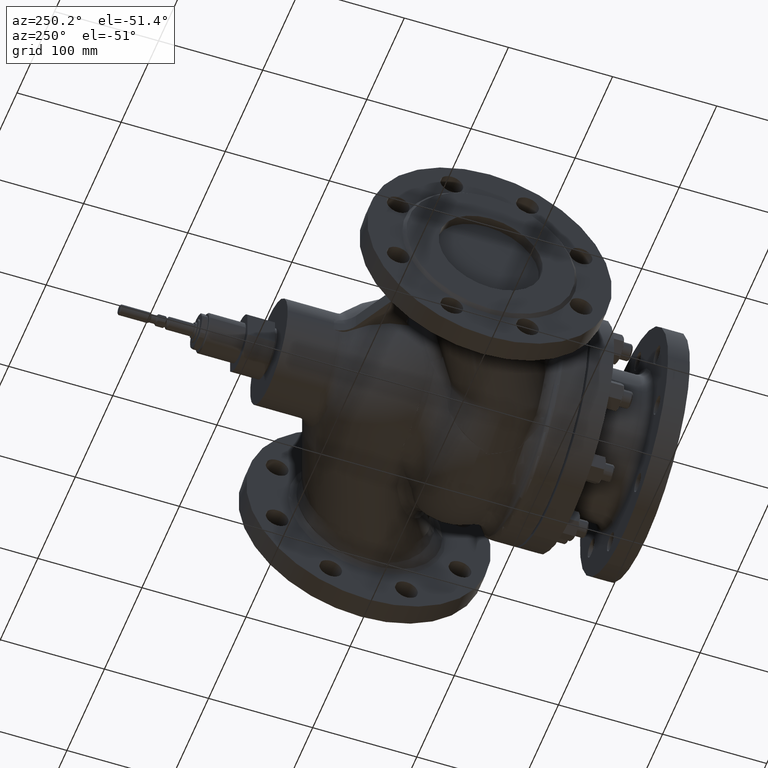
[diagram: clean part render]
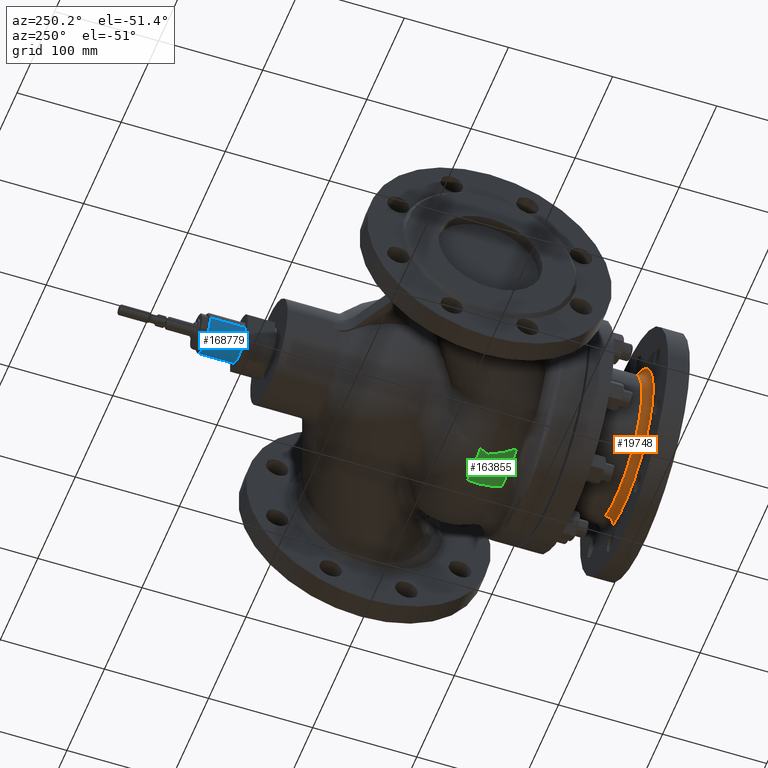
[diagram: same view with three faces highlighted in distinct colors, each labeled with its STEP entity id]
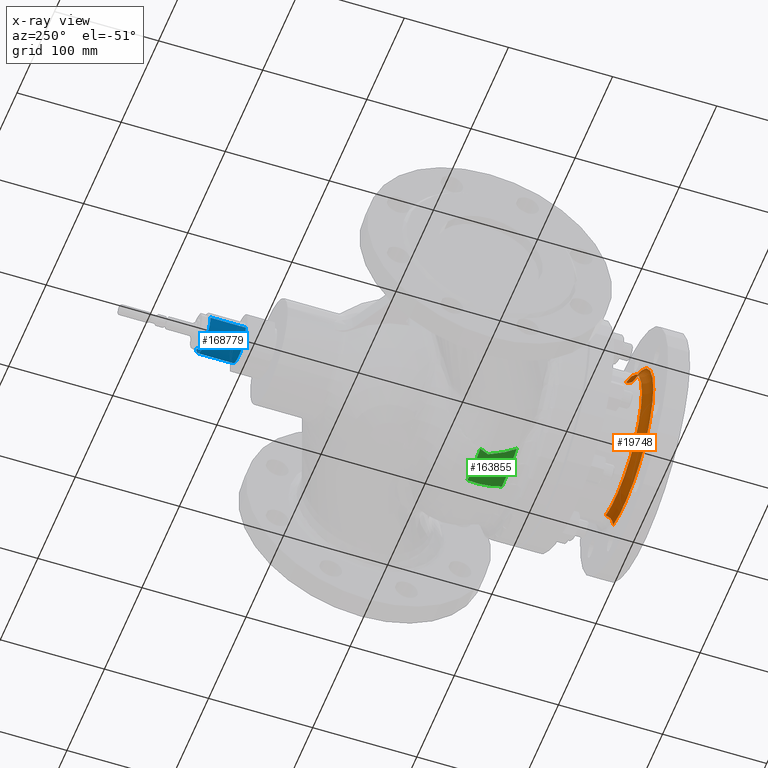
[diagram: x-ray of the same camera — body ghosted, the three highlighted faces saturated]
A machine part, auxiliary view with three faces highlighted in distinct colors.
The next image is the same camera in x-ray (body ghosted, the three faces saturated) — at least one of them is partly hidden behind the body in this view.
Their STEP definitions:

[orange] entity #19748 — the highlighted toroidal blend (fillet) surface has major radius 78 mm and minor (blend) radius 8 mm.
#1397 = ORIENTED_EDGE ( 'NONE', *, *, #88374, .T. ) ;
#7804 = AXIS2_PLACEMENT_3D ( 'NONE', #82557, #68666, #47691 ) ;
#8282 = EDGE_CURVE ( 'NONE', #66372, #105840, #72857, .T. ) ;
#19748 = ADVANCED_FACE ( 'NONE', ( #20640 ), #65976, .F. ) ;
#20640 = FACE_OUTER_BOUND ( 'NONE', #117380, .T. ) ;
#27353 = ORIENTED_EDGE ( 'NONE', *, *, #128317, .F. ) ;
#31173 = CARTESIAN_POINT ( 'NONE',  ( -29.84930772447785700, -183.0000000000000000, 72.06260353588001500 ) ) ;
#42692 = ORIENTED_EDGE ( 'NONE', *, *, #8282, .F. ) ;
#42773 = CARTESIAN_POINT ( 'NONE',  ( 26.78784026555709000, -183.0000000000000000, -64.67156727578976900 ) ) ;
#44640 = ORIENTED_EDGE ( 'NONE', *, *, #57018, .F. ) ;
#44736 = CARTESIAN_POINT ( 'NONE',  ( 1.869470297749063900E-014, -183.0000000000000000, -1.954911242902867500E-014 ) ) ;
#45052 = DIRECTION ( 'NONE',  ( 0.3826834323651007200, 0.0000000000000000000, -0.9238795325112823000 ) ) ;
#47691 = DIRECTION ( 'NONE',  ( -0.3826834323651010500, 0.0000000000000000000, 0.9238795325112820800 ) ) ;
#57018 = EDGE_CURVE ( 'NONE', #105840, #116383, #138014, .T. ) ;
#57958 = DIRECTION ( 'NONE',  ( 8.817190284068855300E-017, -1.000000000000000000, -1.677873999336674600E-016 ) ) ;
#58602 = DIRECTION ( 'NONE',  ( 0.3826834323651009400, 0.0000000000000000000, -0.9238795325112821900 ) ) ;
#62719 = AXIS2_PLACEMENT_3D ( 'NONE', #140618, #57958, #154483 ) ;
#65976 = TOROIDAL_SURFACE ( 'NONE', #98164, 78.00000000000001400, 8.000000000000000000 ) ;
#66372 = VERTEX_POINT ( 'NONE', #68487 ) ;
#68487 = CARTESIAN_POINT ( 'NONE',  ( 29.84930772447789900, -191.0000000000000000, -72.06260353588004400 ) ) ;
#68666 = DIRECTION ( 'NONE',  ( -0.9238795325112821900, -1.725075826285376000E-017, -0.3826834323651010000 ) ) ;
#69061 = AXIS2_PLACEMENT_3D ( 'NONE', #31173, #127704, #45052 ) ;
#72230 = VERTEX_POINT ( 'NONE', #92104 ) ;
#72857 = CIRCLE ( 'NONE', #7804, 8.000000000000001800 ) ;
#82557 = CARTESIAN_POINT ( 'NONE',  ( 29.84930772447789900, -183.0000000000000000, -72.06260353588004400 ) ) ;
#88374 = EDGE_CURVE ( 'NONE', #72230, #116383, #142697, .T. ) ;
#92104 = CARTESIAN_POINT ( 'NONE',  ( -29.84930772447785700, -191.0000000000000000, 72.06260353588001500 ) ) ;
#95520 = AXIS2_PLACEMENT_3D ( 'NONE', #44736, #141265, #58602 ) ;
#98164 = AXIS2_PLACEMENT_3D ( 'NONE', #120220, #175123, #147995 ) ;
#105840 = VERTEX_POINT ( 'NONE', #42773 ) ;
#106569 = CARTESIAN_POINT ( 'NONE',  ( -26.78784026555705500, -183.0000000000000000, 64.67156727578975500 ) ) ;
#111432 = CIRCLE ( 'NONE', #62719, 78.00000000000002800 ) ;
#116383 = VERTEX_POINT ( 'NONE', #106569 ) ;
#117380 = EDGE_LOOP ( 'NONE', ( #27353, #1397, #44640, #42692 ) ) ;
#120220 = CARTESIAN_POINT ( 'NONE',  ( 1.869470297749063900E-014, -183.0000000000000000, -1.954911242902867500E-014 ) ) ;
#127704 = DIRECTION ( 'NONE',  ( 0.9238795325112821900, 1.725075826285377200E-017, 0.3826834323651008800 ) ) ;
#128317 = EDGE_CURVE ( 'NONE', #72230, #66372, #111432, .T. ) ;
#138014 = CIRCLE ( 'NONE', #95520, 70.00000000000001400 ) ;
#140618 = CARTESIAN_POINT ( 'NONE',  ( 1.940007820021615100E-014, -191.0000000000000000, -2.089141162849801500E-014 ) ) ;
#141265 = DIRECTION ( 'NONE',  ( -8.817190284068855300E-017, 1.000000000000000000, 1.677873999336674600E-016 ) ) ;
#142697 = CIRCLE ( 'NONE', #69061, 8.000000000000000000 ) ;
#147995 = DIRECTION ( 'NONE',  ( 0.3826834323651010000, 1.887572710292371100E-016, -0.9238795325112820800 ) ) ;
#154483 = DIRECTION ( 'NONE',  ( 0.3826834323651008800, 0.0000000000000000000, -0.9238795325112820800 ) ) ;
#175123 = DIRECTION ( 'NONE',  ( 8.817190284068855300E-017, -1.000000000000000000, -1.677873999336674600E-016 ) ) ;

[blue] entity #168779 — the highlighted cylindrical surface (edge-blend (fillet) strip) has radius 19 mm, axis along (-0, 1, -0).
#1500 = CARTESIAN_POINT ( 'NONE',  ( 18.99999999999997200, 178.9999999999999700, 1.620461672619442800E-014 ) ) ;
#11115 = CARTESIAN_POINT ( 'NONE',  ( -3.521279167848791600E-014, 213.0000000000000300, 1.387778780781445700E-014 ) ) ;
#17485 = DIRECTION ( 'NONE',  ( -1.000000000000000000, 0.0000000000000000000, 0.0000000000000000000 ) ) ;
#21697 = ORIENTED_EDGE ( 'NONE', *, *, #77224, .T. ) ;
#24500 = EDGE_CURVE ( 'NONE', #55506, #103567, #52844, .T. ) ;
#24996 = DIRECTION ( 'NONE',  ( 1.000000000000000000, 0.0000000000000000000, 0.0000000000000000000 ) ) ;
#29247 = DIRECTION ( 'NONE',  ( -2.250022087931829400E-016, 1.000000000000000000, -0.0000000000000000000 ) ) ;
#30427 = ORIENTED_EDGE ( 'NONE', *, *, #144952, .T. ) ;
#35205 = CIRCLE ( 'NONE', #126693, 19.00000000000000400 ) ;
#40455 = VECTOR ( 'NONE', #124782, 1000.000000000000000 ) ;
#41698 = CIRCLE ( 'NONE', #133568, 19.00000000000000000 ) ;
#44911 = EDGE_LOOP ( 'NONE', ( #90420, #30427, #69524, #21697 ) ) ;
#52844 = LINE ( 'NONE', #73161, #158609 ) ;
#55506 = VERTEX_POINT ( 'NONE', #1500 ) ;
#69256 = CARTESIAN_POINT ( 'NONE',  ( -19.00000000000003200, 179.8571428571463300, 1.387778780781445700E-014 ) ) ;
#69524 = ORIENTED_EDGE ( 'NONE', *, *, #111188, .T. ) ;
#70351 = AXIS2_PLACEMENT_3D ( 'NONE', #168878, #169463, #17485 ) ;
#73161 = CARTESIAN_POINT ( 'NONE',  ( 18.99999999999997500, 179.8571428571463300, 1.620461672619442800E-014 ) ) ;
#77224 = EDGE_CURVE ( 'NONE', #170221, #103567, #35205, .T. ) ;
#90420 = ORIENTED_EDGE ( 'NONE', *, *, #24500, .F. ) ;
#103567 = VERTEX_POINT ( 'NONE', #175790 ) ;
#107630 = DIRECTION ( 'NONE',  ( 2.250022087931826400E-016, -1.000000000000000000, 0.0000000000000000000 ) ) ;
#111188 = EDGE_CURVE ( 'NONE', #137848, #170221, #150552, .T. ) ;
#111901 = CARTESIAN_POINT ( 'NONE',  ( -2.756271657951968300E-014, 178.9999999999999700, 1.387778780781445700E-014 ) ) ;
#124782 = DIRECTION ( 'NONE',  ( -2.250022087931829400E-016, 1.000000000000000000, -0.0000000000000000000 ) ) ;
#125782 = DIRECTION ( 'NONE',  ( -1.000000000000000000, 0.0000000000000000000, 0.0000000000000000000 ) ) ;
#126693 = AXIS2_PLACEMENT_3D ( 'NONE', #11115, #107630, #24996 ) ;
#129495 = CARTESIAN_POINT ( 'NONE',  ( -19.00000000000003900, 213.0000000000000300, 1.387778780781445700E-014 ) ) ;
#133568 = AXIS2_PLACEMENT_3D ( 'NONE', #111901, #29247, #125782 ) ;
#133626 = CYLINDRICAL_SURFACE ( 'NONE', #70351, 19.00000000000000400 ) ;
#137848 = VERTEX_POINT ( 'NONE', #174693 ) ;
#137946 = FACE_OUTER_BOUND ( 'NONE', #44911, .T. ) ;
#144952 = EDGE_CURVE ( 'NONE', #55506, #137848, #41698, .T. ) ;
#150552 = LINE ( 'NONE', #69256, #40455 ) ;
#155829 = DIRECTION ( 'NONE',  ( -2.250022087931829400E-016, 1.000000000000000000, -0.0000000000000000000 ) ) ;
#158609 = VECTOR ( 'NONE', #155829, 1000.000000000000000 ) ;
#168779 = ADVANCED_FACE ( 'NONE', ( #137946 ), #133626, .T. ) ;
#168878 = CARTESIAN_POINT ( 'NONE',  ( -2.775557561562891400E-014, 179.8571428571463300, 1.387778780781445700E-014 ) ) ;
#169463 = DIRECTION ( 'NONE',  ( -2.250022087931829400E-016, 1.000000000000000000, -0.0000000000000000000 ) ) ;
#170221 = VERTEX_POINT ( 'NONE', #129495 ) ;
#174693 = CARTESIAN_POINT ( 'NONE',  ( -19.00000000000002800, 178.9999999999999700, 1.387778780781445700E-014 ) ) ;
#175790 = CARTESIAN_POINT ( 'NONE',  ( 18.99999999999996800, 213.0000000000000300, 1.620461672619442800E-014 ) ) ;

[green] entity #163855 — the highlighted toroidal blend (fillet) surface has major radius 48 mm and minor (blend) radius 58 mm.
#9 = FACE_OUTER_BOUND ( 'NONE', #34498, .T. ) ;
#6828 = CIRCLE ( 'NONE', #112956, 100.4457422032409000 ) ;
#7554 = CARTESIAN_POINT ( 'NONE',  ( -33.53209348326620200, -55.10070245100480700, -100.2222737899538900 ) ) ;
#8141 = CARTESIAN_POINT ( 'NONE',  ( -31.50161705191942800, -48.92163707320921900, -101.2109354526837300 ) ) ;
#8729 = CARTESIAN_POINT ( 'NONE',  ( -33.52564313047238900, -42.50827391760861900, -100.1756419141039900 ) ) ;
#11842 = CARTESIAN_POINT ( 'NONE',  ( -6.249696908096402400E-015, -73.76780419720726900, -100.4457422032409100 ) ) ;
#14842 = VERTEX_POINT ( 'NONE', #148259 ) ;
#17864 = EDGE_CURVE ( 'NONE', #120486, #14842, #42270, .T. ) ;
#21424 = CARTESIAN_POINT ( 'NONE',  ( -32.84360078031019700, -52.95635727578895300, -100.6463450707700800 ) ) ;
#22020 = CARTESIAN_POINT ( 'NONE',  ( -31.60523921622245800, -48.45543848104902200, -101.1762344337447500 ) ) ;
#22626 = CARTESIAN_POINT ( 'NONE',  ( -33.84438644201117800, -41.42946579065813500, -99.92930569935086300 ) ) ;
#24798 = B_SPLINE_CURVE_WITH_KNOTS ( 'NONE', 3,
 ( #141709, #88968, #48573, #145088, #62417, #158967, #76305, #172822, #90161, #7554, #104059, #21424, #117932, #35284, #131797, #49165, #145695, #63010, #159556, #76893, #173422, #90762, #8141, #104649, #22020, #118514, #35876, #132393, #49762, #146301, #63616, #160152, #77484, #174024, #91373, #8729, #105245, #22626, #119126, #36474 ),
 .UNSPECIFIED., .F., .F.,
 ( 4, 2, 2, 2, 2, 2, 2, 2, 2, 2, 2, 2, 2, 2, 2, 2, 2, 2, 2, 4 ),
 ( 0.01546956490432379800, 0.02461308288277008800, 0.02918484187199325800, 0.03375660086121642900, 0.03604248035582801500, 0.03832835985043959300, 0.04061423934505117800, 0.04175717909235696800, 0.04232864896600985200, 0.04290011883966274300, 0.04318585377648918900, 0.04347158871331564100, 0.04404305858696851200, 0.04461452846062137500, 0.04518599833427424500, 0.04632893808157997900, 0.04747187782888570600, 0.04975775732349717300, 0.05090069707080291400, 0.05204363681810864100 ),
 .UNSPECIFIED. ) ;
#30502 = CIRCLE ( 'NONE', #89205, 57.99999999999999300 ) ;
#34498 = EDGE_LOOP ( 'NONE', ( #89458, #59444, #80037, #49621 ) ) ;
#35284 = CARTESIAN_POINT ( 'NONE',  ( -32.24331112242160900, -51.16557978234569500, -100.9358655986710900 ) ) ;
#35333 = CARTESIAN_POINT ( 'NONE',  ( 4.520193743116709700E-015, -40.71428571428572200, -2.775917097723738400E-015 ) ) ;
#35876 = CARTESIAN_POINT ( 'NONE',  ( -31.80183649716955700, -47.91855490525826200, -101.1067202052416300 ) ) ;
#36474 = CARTESIAN_POINT ( 'NONE',  ( -34.05949949921417600, -40.71428571428570800, -99.75063022689829500 ) ) ;
#38946 = CARTESIAN_POINT ( 'NONE',  ( -4.382118152440282000E-016, -48.99999999999999300, -47.99999999999999300 ) ) ;
#42235 = DIRECTION ( 'NONE',  ( 1.110223024625156500E-016, -1.000000000000000000, -6.818041994409180400E-017 ) ) ;
#42270 = CIRCLE ( 'NONE', #73820, 105.4051124794256400 ) ;
#45112 = EDGE_CURVE ( 'NONE', #14842, #76034, #30502, .T. ) ;
#48573 = CARTESIAN_POINT ( 'NONE',  ( -37.85745991652959900, -68.75458547850820400, -95.37018116215115500 ) ) ;
#49165 = CARTESIAN_POINT ( 'NONE',  ( -31.91269776712152900, -50.27791070015339900, -101.0675889374853700 ) ) ;
#49213 = DIRECTION ( 'NONE',  ( 2.192603260791356100E-032, -1.316614297102838000E-016, 1.000000000000000000 ) ) ;
#49621 = ORIENTED_EDGE ( 'NONE', *, *, #118858, .T. ) ;
#49762 = CARTESIAN_POINT ( 'NONE',  ( -32.00151756479456100, -47.38370778892296900, -101.0306462739567300 ) ) ;
#52822 = DIRECTION ( 'NONE',  ( 1.224646799147353200E-016, 0.0000000000000000000, 1.000000000000000000 ) ) ;
#56114 = DIRECTION ( 'NONE',  ( 1.483720737255330000E-032, -6.818041994409180400E-017, 1.000000000000000000 ) ) ;
#59444 = ORIENTED_EDGE ( 'NONE', *, *, #45112, .T. ) ;
#62417 = CARTESIAN_POINT ( 'NONE',  ( -36.17795362449589200, -63.45230415565458800, -97.70679707428780600 ) ) ;
#63010 = CARTESIAN_POINT ( 'NONE',  ( -31.70374316543918900, -49.74879142376743600, -101.1430190252846700 ) ) ;
#63616 = CARTESIAN_POINT ( 'NONE',  ( -32.30816259336662500, -46.48429166879745400, -100.9002952867047300 ) ) ;
#70427 = CARTESIAN_POINT ( 'NONE',  ( -39.49052748915453700, -73.76780419720724100, -92.35716196044710100 ) ) ;
#73820 = AXIS2_PLACEMENT_3D ( 'NONE', #35333, #131846, #49213 ) ;
#75624 = DIRECTION ( 'NONE',  ( -1.110223024625156500E-016, 1.000000000000000000, 6.818041994409180400E-017 ) ) ;
#76034 = VERTEX_POINT ( 'NONE', #11842 ) ;
#76305 = CARTESIAN_POINT ( 'NONE',  ( -34.87573992683845600, -59.34293238341021500, -99.13369043072680100 ) ) ;
#76893 = CARTESIAN_POINT ( 'NONE',  ( -31.54566380038713200, -49.30050475077435800, -101.1964528575907300 ) ) ;
#77484 = CARTESIAN_POINT ( 'NONE',  ( -32.65124719359677400, -45.39908632360750600, -100.7295610507164800 ) ) ;
#80037 = ORIENTED_EDGE ( 'NONE', *, *, #85648, .T. ) ;
#85648 = EDGE_CURVE ( 'NONE', #76034, #96281, #6828, .T. ) ;
#88968 = CARTESIAN_POINT ( 'NONE',  ( -38.67901829193522900, -71.30658568990979500, -93.96827130569302300 ) ) ;
#89205 = AXIS2_PLACEMENT_3D ( 'NONE', #38946, #135456, #52822 ) ;
#89458 = ORIENTED_EDGE ( 'NONE', *, *, #17864, .T. ) ;
#89917 = AXIS2_PLACEMENT_3D ( 'NONE', #97136, #42235, #56114 ) ;
#90161 = CARTESIAN_POINT ( 'NONE',  ( -33.98362394473391400, -56.52346901643125700, -99.89234704453676300 ) ) ;
#90762 = CARTESIAN_POINT ( 'NONE',  ( -31.49807999739088900, -49.01926614650430000, -101.2120877029076700 ) ) ;
#91373 = CARTESIAN_POINT ( 'NONE',  ( -33.20468514856408900, -43.59048231789168400, -100.4038970651892600 ) ) ;
#96281 = VERTEX_POINT ( 'NONE', #70427 ) ;
#97136 = CARTESIAN_POINT ( 'NONE',  ( 5.440092820663267000E-015, -49.00000000000000000, -3.340840577260498200E-015 ) ) ;
#104059 = CARTESIAN_POINT ( 'NONE',  ( -33.30484313668191000, -54.38699201757707200, -100.3728601433425900 ) ) ;
#104649 = CARTESIAN_POINT ( 'NONE',  ( -31.54206347214856600, -48.63785918202742700, -101.1974543659672200 ) ) ;
#105245 = CARTESIAN_POINT ( 'NONE',  ( -33.63194875801806200, -42.14813233454372500, -100.0960062928650700 ) ) ;
#112956 = AXIS2_PLACEMENT_3D ( 'NONE', #158279, #75624, #172132 ) ;
#117932 = CARTESIAN_POINT ( 'NONE',  ( -32.61102349726553500, -52.23888497832800200, -100.7688045070317600 ) ) ;
#118514 = CARTESIAN_POINT ( 'NONE',  ( -31.73348319272727000, -48.09635880587394800, -101.1313857778565500 ) ) ;
#118858 = EDGE_CURVE ( 'NONE', #96281, #120486, #24798, .T. ) ;
#119126 = CARTESIAN_POINT ( 'NONE',  ( -33.94603342338474100, -41.06931640304638600, -99.84352192438699100 ) ) ;
#120486 = VERTEX_POINT ( 'NONE', #144857 ) ;
#131797 = CARTESIAN_POINT ( 'NONE',  ( -32.11585426047568600, -50.80882284547613600, -100.9893153148979900 ) ) ;
#131846 = DIRECTION ( 'NONE',  ( 1.110223024625156500E-016, -1.000000000000000000, -6.818041994409180400E-017 ) ) ;
#132393 = CARTESIAN_POINT ( 'NONE',  ( -31.93560465285190400, -47.56213576358011600, -101.0564278548516500 ) ) ;
#135456 = DIRECTION ( 'NONE',  ( -1.000000000000000000, -1.110223024625156500E-016, 1.224646799147353200E-016 ) ) ;
#141709 = CARTESIAN_POINT ( 'NONE',  ( -39.49052748915453700, -73.76780419720724100, -92.35716196044710100 ) ) ;
#144857 = CARTESIAN_POINT ( 'NONE',  ( -34.05949949921417600, -40.71428571428570800, -99.75063022689829500 ) ) ;
#145088 = CARTESIAN_POINT ( 'NONE',  ( -36.60143652662412700, -64.79421101473808200, -97.16156937381683200 ) ) ;
#145695 = CARTESIAN_POINT ( 'NONE',  ( -31.84307121024303200, -50.10161208771507500, -101.0933391296103000 ) ) ;
#146301 = CARTESIAN_POINT ( 'NONE',  ( -32.19209905695915100, -46.84617882484735000, -100.9526773899206100 ) ) ;
#148259 = CARTESIAN_POINT ( 'NONE',  ( -8.388209618052824600E-015, -40.71428571428571500, -105.4051124794256400 ) ) ;
#158279 = CARTESIAN_POINT ( 'NONE',  ( 8.189871469577977200E-015, -73.76780419720726900, -5.029519868519129600E-015 ) ) ;
#158967 = CARTESIAN_POINT ( 'NONE',  ( -35.31528967384305400, -60.72657565824439300, -98.69279036125937000 ) ) ;
#159556 = CARTESIAN_POINT ( 'NONE',  ( -31.63203290496119300, -49.57311331720963200, -101.1675751057617300 ) ) ;
#160152 = CARTESIAN_POINT ( 'NONE',  ( -32.53789509862134100, -45.76080563576292100, -100.7886837425956100 ) ) ;
#163855 = ADVANCED_FACE ( 'NONE', ( #9 ), #174819, .T. ) ;
#172132 = DIRECTION ( 'NONE',  ( -3.067813372103444900E-032, 1.381620315944729900E-016, -1.000000000000000000 ) ) ;
#172822 = CARTESIAN_POINT ( 'NONE',  ( -34.20801473335437500, -57.23321239234705600, -99.71282129961375100 ) ) ;
#173422 = CARTESIAN_POINT ( 'NONE',  ( -31.52109831697358900, -49.20798525468617900, -101.2045341001016500 ) ) ;
#174024 = CARTESIAN_POINT ( 'NONE',  ( -32.98548123078334300, -44.31352433755879600, -100.5426015270750100 ) ) ;
#174819 = TOROIDAL_SURFACE ( 'NONE', #89917, 47.99999999999999300, 57.99999999999999300 ) ;